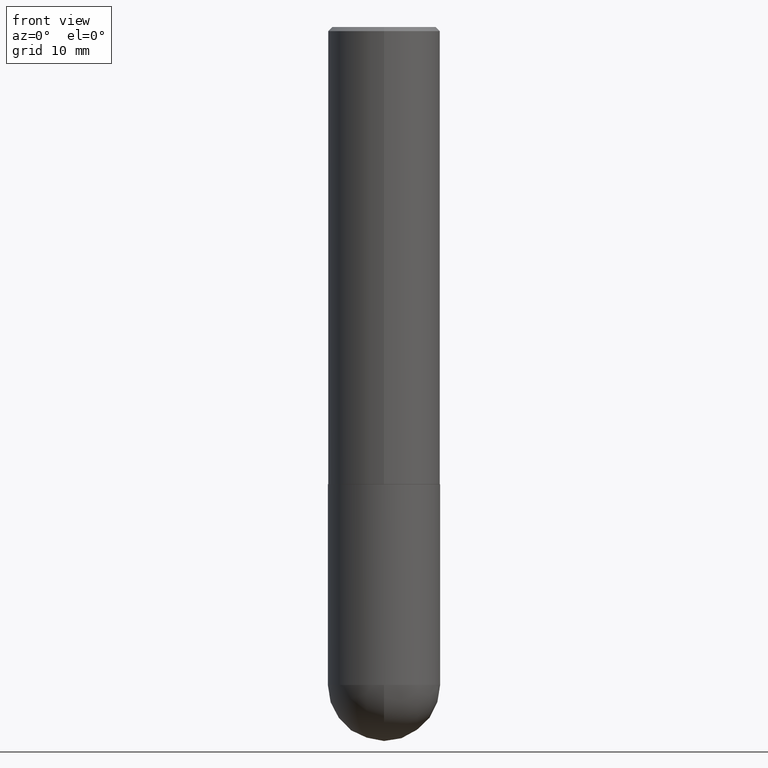
[diagram: clean part render]
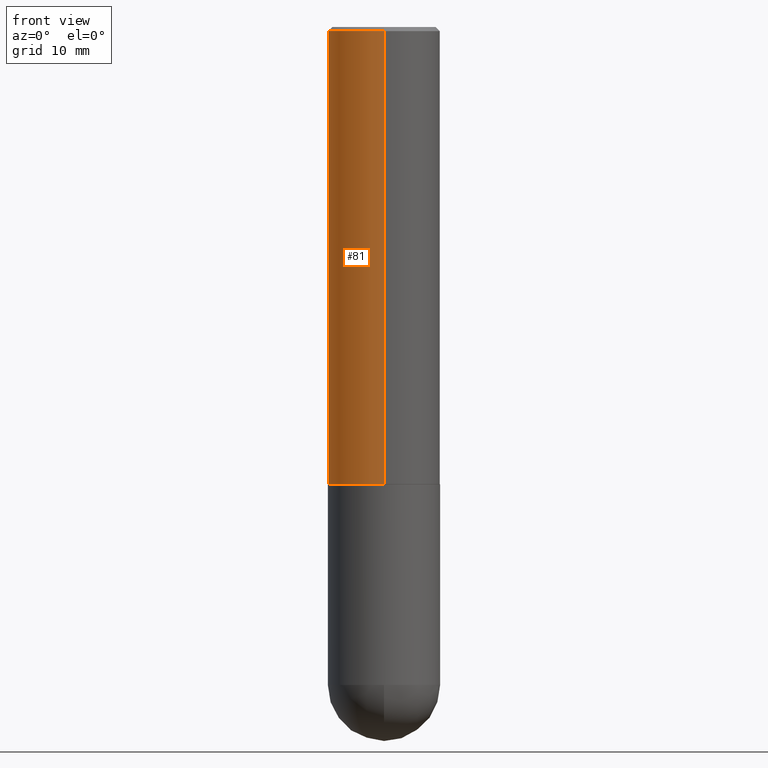
[diagram: same view with one face highlighted and labeled with its STEP entity id]
A machine part, front view. The second image highlights one B-rep face of the part: STEP entity #81.
In plain terms, the highlighted cylindrical surface (partial cylindrical patch) has radius 7.0002 mm, axis along (-0, 0, 1).
Its self-contained STEP definition (entity closure, byte-faithful):
#8 = CARTESIAN_POINT ( 'NONE',  ( 4.892644131177882669E-31, -6.980518845624820179E-17, -0.02000000000000006287 ) ) ;
#10 = VERTEX_POINT ( 'NONE', #219 ) ;
#20 = AXIS2_PLACEMENT_3D ( 'NONE', #8, #261, #163 ) ;
#24 = VERTEX_POINT ( 'NONE', #246 ) ;
#30 = CARTESIAN_POINT ( 'NONE',  ( 0.000000000000000000, 0.000000000000000000, 0.000000000000000000 ) ) ;
#50 = CARTESIAN_POINT ( 'NONE',  ( -1.924504513970282100E-15, -0.2756000000000080608, -2.243099999999998317 ) ) ;
#57 = EDGE_LOOP ( 'NONE', ( #332, #136, #108, #387 ) ) ;
#72 = AXIS2_PLACEMENT_3D ( 'NONE', #30, #193, #316 ) ;
#81 = ADVANCED_FACE ( 'NONE', ( #311 ), #212, .T. ) ;
#104 = DIRECTION ( 'NONE',  ( -6.982962677686265922E-15, -1.000000000000000000, 3.964946289788476952E-15 ) ) ;
#108 = ORIENTED_EDGE ( 'NONE', *, *, #239, .T. ) ;
#114 = EDGE_CURVE ( 'NONE', #24, #217, #399, .T. ) ;
#136 = ORIENTED_EDGE ( 'NONE', *, *, #114, .T. ) ;
#141 = DIRECTION ( 'NONE',  ( -2.446322065588933785E-29, 3.490259422812398922E-15, 1.000000000000000000 ) ) ;
#146 = EDGE_CURVE ( 'NONE', #10, #164, #206, .T. ) ;
#155 = EDGE_CURVE ( 'NONE', #24, #10, #198, .T. ) ;
#163 = DIRECTION ( 'NONE',  ( -6.982962677686265922E-15, -1.000000000000000000, 3.484816075009406388E-15 ) ) ;
#164 = VERTEX_POINT ( 'NONE', #389 ) ;
#176 = VECTOR ( 'NONE', #356, 39.37007874015748143 ) ;
#193 = DIRECTION ( 'NONE',  ( -2.446322065588933505E-29, 3.490259422812398922E-15, 1.000000000000000000 ) ) ;
#195 = CARTESIAN_POINT ( 'NONE',  ( 5.487345025322535087E-29, -7.829000911310490294E-15, -2.243099999999999206 ) ) ;
#198 = LINE ( 'NONE', #324, #241 ) ;
#206 = CIRCLE ( 'NONE', #20, 0.2756000000000000116 ) ;
#212 = CYLINDRICAL_SURFACE ( 'NONE', #72, 0.2756000000000001227 ) ;
#217 = VERTEX_POINT ( 'NONE', #50 ) ;
#219 = CARTESIAN_POINT ( 'NONE',  ( 1.924504513970335348E-15, 0.2755999999999999006, -0.02000000000000102390 ) ) ;
#239 = EDGE_CURVE ( 'NONE', #217, #164, #240, .T. ) ;
#240 = LINE ( 'NONE', #392, #176 ) ;
#241 = VECTOR ( 'NONE', #141, 39.37007874015748143 ) ;
#246 = CARTESIAN_POINT ( 'NONE',  ( 1.958255779754864988E-15, 0.2755999999999924621, -2.243100000000000538 ) ) ;
#254 = DIRECTION ( 'NONE',  ( -2.446322065588933505E-29, 3.490259422812398922E-15, 1.000000000000000000 ) ) ;
#261 = DIRECTION ( 'NONE',  ( -2.446322065588933505E-29, 3.490259422812398922E-15, 1.000000000000000000 ) ) ;
#293 = AXIS2_PLACEMENT_3D ( 'NONE', #195, #254, #104 ) ;
#311 = FACE_OUTER_BOUND ( 'NONE', #57, .T. ) ;
#316 = DIRECTION ( 'NONE',  ( -6.982962677686265922E-15, -1.000000000000000000, 3.490259422812398922E-15 ) ) ;
#324 = CARTESIAN_POINT ( 'NONE',  ( 1.958255779754836589E-15, 0.2756000000000001227, -9.619154969270975392E-16 ) ) ;
#332 = ORIENTED_EDGE ( 'NONE', *, *, #155, .F. ) ;
#356 = DIRECTION ( 'NONE',  ( -2.446322065588933785E-29, 3.490259422812398922E-15, 1.000000000000000000 ) ) ;
#387 = ORIENTED_EDGE ( 'NONE', *, *, #146, .F. ) ;
#389 = CARTESIAN_POINT ( 'NONE',  ( -1.890753248185833319E-15, -0.2756000000000000671, -0.01999999999999910530 ) ) ;
#392 = CARTESIAN_POINT ( 'NONE',  ( -1.924504513970335743E-15, -0.2756000000000001227, 9.619154969270975392E-16 ) ) ;
#399 = CIRCLE ( 'NONE', #293, 0.2756000000000002892 ) ;